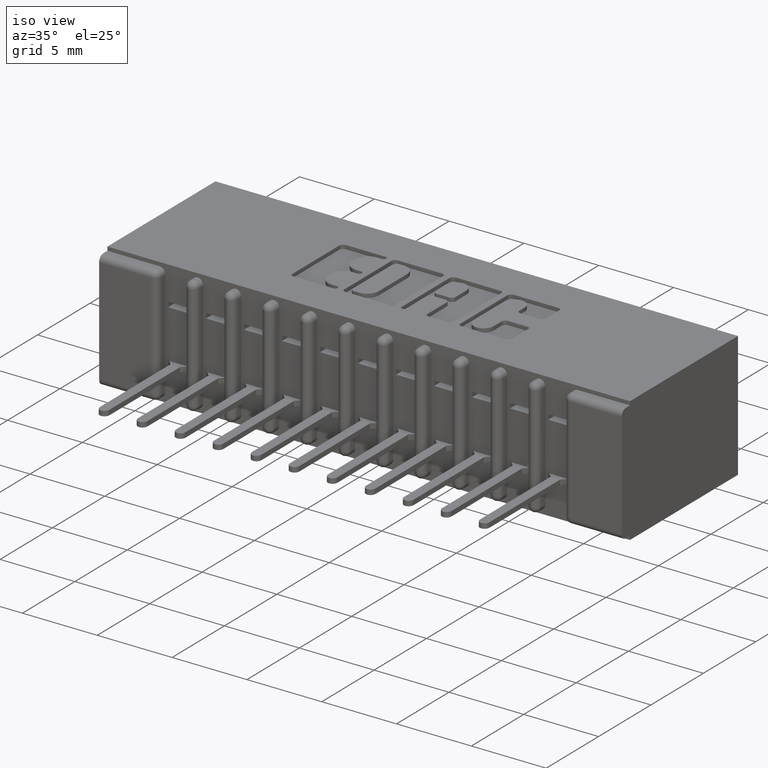
[diagram: clean part render]
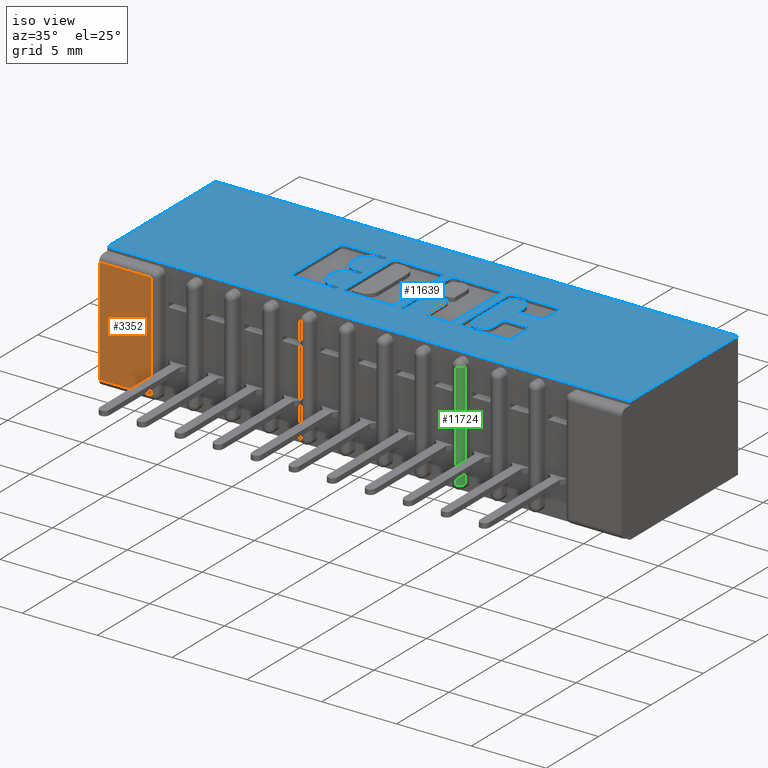
[diagram: same view with three faces highlighted in distinct colors, each labeled with its STEP entity id]
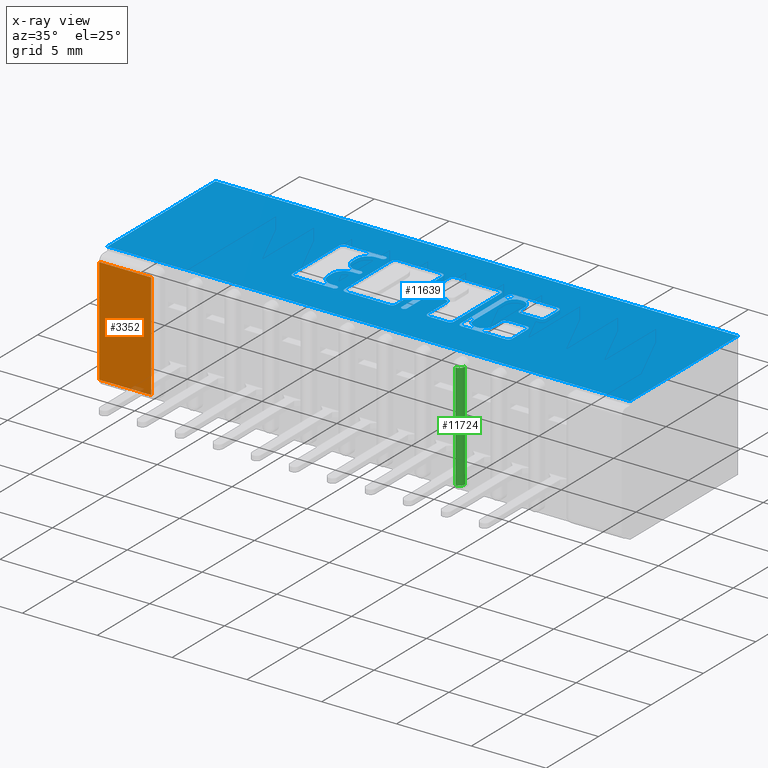
[diagram: x-ray of the same camera — body ghosted, the three highlighted faces saturated]
A machine part, iso view with three faces highlighted in distinct colors.
The next image is the same camera in x-ray (body ghosted, the three faces saturated) — at least one of them is partly hidden behind the body in this view.
Their STEP definitions:

[orange] entity #3352 — the highlighted planar face has unit normal (0, -1, 0).
#548 = VERTEX_POINT ( 'NONE', #10863 ) ;
#860 = AXIS2_PLACEMENT_3D ( 'NONE', #15962, #13674, #6529 ) ;
#1025 = CARTESIAN_POINT ( 'NONE',  ( 1.675000000000000000, 0.0000000000000000000, -0.3049999999999999400 ) ) ;
#1398 = DIRECTION ( 'NONE',  ( 1.000000000000000000, -0.0000000000000000000, -0.0000000000000000000 ) ) ;
#2974 = CARTESIAN_POINT ( 'NONE',  ( 0.2999999999999999300, 0.0000000000000000000, -0.02499999999999997400 ) ) ;
#2997 = DIRECTION ( 'NONE',  ( -1.000000000000000000, 0.0000000000000000000, 0.0000000000000000000 ) ) ;
#3125 = VECTOR ( 'NONE', #8893, 39.37007874015748100 ) ;
#3352 = ADVANCED_FACE ( 'NONE', ( #14489 ), #12763, .T. ) ;
#3420 = ORIENTED_EDGE ( 'NONE', *, *, #8736, .T. ) ;
#3652 = ORIENTED_EDGE ( 'NONE', *, *, #14419, .T. ) ;
#3676 = LINE ( 'NONE', #7537, #3125 ) ;
#4289 = ORIENTED_EDGE ( 'NONE', *, *, #15964, .T. ) ;
#6529 = DIRECTION ( 'NONE',  ( 0.0000000000000000000, -0.0000000000000000000, -1.000000000000000000 ) ) ;
#6645 = CARTESIAN_POINT ( 'NONE',  ( 0.4372500000000004200, 0.0000000000000000000, -0.02499999999999997400 ) ) ;
#7537 = CARTESIAN_POINT ( 'NONE',  ( 0.2999999999999999300, 0.0000000000000000000, -0.3300000000000000200 ) ) ;
#7811 = LINE ( 'NONE', #1025, #11732 ) ;
#8736 = EDGE_CURVE ( 'NONE', #16574, #548, #7811, .T. ) ;
#8893 = DIRECTION ( 'NONE',  ( -1.034790906691008700E-016, -0.0000000000000000000, -1.000000000000000000 ) ) ;
#10863 = CARTESIAN_POINT ( 'NONE',  ( 0.4372500000000003600, 0.0000000000000000000, -0.3049999999999999400 ) ) ;
#11632 = EDGE_CURVE ( 'NONE', #11743, #16574, #3676, .T. ) ;
#11732 = VECTOR ( 'NONE', #1398, 39.37007874015748100 ) ;
#11743 = VERTEX_POINT ( 'NONE', #12960 ) ;
#12096 = VECTOR ( 'NONE', #2997, 39.37007874015748100 ) ;
#12125 = LINE ( 'NONE', #2974, #12096 ) ;
#12763 = PLANE ( 'NONE',  #860 ) ;
#12954 = CARTESIAN_POINT ( 'NONE',  ( 0.4372500000000004200, 0.0000000000000000000, -0.02499999999999997400 ) ) ;
#12960 = CARTESIAN_POINT ( 'NONE',  ( 0.2999999999999999900, 0.0000000000000000000, -0.02499999999999997400 ) ) ;
#13002 = DIRECTION ( 'NONE',  ( -0.0000000000000000000, -0.0000000000000000000, 1.000000000000000000 ) ) ;
#13674 = DIRECTION ( 'NONE',  ( 0.0000000000000000000, -1.000000000000000000, 0.0000000000000000000 ) ) ;
#14307 = CARTESIAN_POINT ( 'NONE',  ( 0.2999999999999999300, 0.0000000000000000000, -0.3049999999999999400 ) ) ;
#14419 = EDGE_CURVE ( 'NONE', #548, #14650, #16037, .T. ) ;
#14489 = FACE_OUTER_BOUND ( 'NONE', #14953, .T. ) ;
#14650 = VERTEX_POINT ( 'NONE', #6645 ) ;
#14953 = EDGE_LOOP ( 'NONE', ( #3420, #3652, #4289, #16356 ) ) ;
#15949 = VECTOR ( 'NONE', #13002, 39.37007874015748100 ) ;
#15962 = CARTESIAN_POINT ( 'NONE',  ( 0.0000000000000000000, 0.0000000000000000000, -0.3300000000000000200 ) ) ;
#15964 = EDGE_CURVE ( 'NONE', #14650, #11743, #12125, .T. ) ;
#16037 = LINE ( 'NONE', #12954, #15949 ) ;
#16356 = ORIENTED_EDGE ( 'NONE', *, *, #11632, .T. ) ;
#16574 = VERTEX_POINT ( 'NONE', #14307 ) ;

[blue] entity #11639 — the highlighted planar face has unit normal (0, 0, -1).
#33 = VERTEX_POINT ( 'NONE', #9112 ) ;
#52 = VECTOR ( 'NONE', #6929, 39.37007874015748100 ) ;
#69 = LINE ( 'NONE', #7767, #52 ) ;
#129 = VERTEX_POINT ( 'NONE', #3287 ) ;
#164 = VERTEX_POINT ( 'NONE', #11325 ) ;
#171 = CIRCLE ( 'NONE', #16795, 0.009815670203803203800 ) ;
#197 = VERTEX_POINT ( 'NONE', #16006 ) ;
#257 = DIRECTION ( 'NONE',  ( 0.0000000000000000000, -1.000000000000000000, 0.0000000000000000000 ) ) ;
#361 = VERTEX_POINT ( 'NONE', #12110 ) ;
#419 = VERTEX_POINT ( 'NONE', #6026 ) ;
#420 = AXIS2_PLACEMENT_3D ( 'NONE', #14216, #14118, #14036 ) ;
#447 = DIRECTION ( 'NONE',  ( 1.000000000000000000, 0.0000000000000000000, 0.0000000000000000000 ) ) ;
#492 = AXIS2_PLACEMENT_3D ( 'NONE', #15290, #15247, #15172 ) ;
#568 = VERTEX_POINT ( 'NONE', #15011 ) ;
#589 = VERTEX_POINT ( 'NONE', #8353 ) ;
#629 = DIRECTION ( 'NONE',  ( 1.000000000000000000, 0.0000000000000000000, 0.0000000000000000000 ) ) ;
#695 = DIRECTION ( 'NONE',  ( -0.0000000000000000000, 0.0000000000000000000, 1.000000000000000000 ) ) ;
#737 = AXIS2_PLACEMENT_3D ( 'NONE', #4883, #4804, #4744 ) ;
#759 = DIRECTION ( 'NONE',  ( 1.000000000000000000, 0.0000000000000000000, 0.0000000000000000000 ) ) ;
#847 = CARTESIAN_POINT ( 'NONE',  ( 0.8206336065353099200, 0.2340000000000221900, 0.0000000000000000000 ) ) ;
#873 = DIRECTION ( 'NONE',  ( -0.0000000000000000000, 0.0000000000000000000, 1.000000000000000000 ) ) ;
#924 = CARTESIAN_POINT ( 'NONE',  ( 0.8532707099630101300, 0.3223410318342119200, 0.0000000000000000000 ) ) ;
#963 = AXIS2_PLACEMENT_3D ( 'NONE', #12046, #12026, #11994 ) ;
#966 = DIRECTION ( 'NONE',  ( 0.0000000000000000000, -1.000000000000000000, 0.0000000000000000000 ) ) ;
#1053 = AXIS2_PLACEMENT_3D ( 'NONE', #11982, #11912, #11711 ) ;
#1080 = VERTEX_POINT ( 'NONE', #4942 ) ;
#1248 = CIRCLE ( 'NONE', #2994, 0.009815670203805798900 ) ;
#1259 = VECTOR ( 'NONE', #15775, 39.37007874015748100 ) ;
#1270 = VERTEX_POINT ( 'NONE', #8287 ) ;
#1282 = CARTESIAN_POINT ( 'NONE',  ( 1.284178631909940200, 0.1456589681657848000, 0.0000000000000000000 ) ) ;
#1296 = VECTOR ( 'NONE', #12315, 39.37007874015748100 ) ;
#1313 = EDGE_CURVE ( 'NONE', #9657, #1270, #2207, .T. ) ;
#1321 = LINE ( 'NONE', #15855, #1259 ) ;
#1330 = LINE ( 'NONE', #12581, #1296 ) ;
#1337 = DIRECTION ( 'NONE',  ( -0.0000000000000000000, 1.000000000000000000, -0.0000000000000000000 ) ) ;
#1457 = CARTESIAN_POINT ( 'NONE',  ( 1.214978156973179000, 0.0000000000000000000, 0.0000000000000000000 ) ) ;
#1481 = LINE ( 'NONE', #12280, #1548 ) ;
#1491 = DIRECTION ( 'NONE',  ( 0.0000000000000000000, 1.000000000000000000, -0.0000000000000000000 ) ) ;
#1526 = VECTOR ( 'NONE', #13214, 39.37007874015748100 ) ;
#1548 = VECTOR ( 'NONE', #12224, 39.37007874015748100 ) ;
#1550 = VERTEX_POINT ( 'NONE', #2107 ) ;
#1574 = CARTESIAN_POINT ( 'NONE',  ( 0.7065264404161153400, 0.0000000000000000000, 0.0000000000000000000 ) ) ;
#1580 = LINE ( 'NONE', #13330, #1526 ) ;
#1590 = VERTEX_POINT ( 'NONE', #7081 ) ;
#1646 = DIRECTION ( 'NONE',  ( 0.0000000000000000000, -1.000000000000000000, 0.0000000000000000000 ) ) ;
#1666 = CARTESIAN_POINT ( 'NONE',  ( 0.2999999999999999900, 0.0000000000000000000, 0.0000000000000000000 ) ) ;
#1845 = CARTESIAN_POINT ( 'NONE',  ( 0.7757269153529277000, 0.0000000000000000000, 0.0000000000000000000 ) ) ;
#1935 = DIRECTION ( 'NONE',  ( -1.000000000000000000, -3.427012734660361200E-014, 0.0000000000000000000 ) ) ;
#1987 = AXIS2_PLACEMENT_3D ( 'NONE', #6434, #6430, #6315 ) ;
#2037 = CARTESIAN_POINT ( 'NONE',  ( 1.131544960240806800, 0.0000000000000000000, 0.0000000000000000000 ) ) ;
#2107 = CARTESIAN_POINT ( 'NONE',  ( 1.148722383097458400, 0.1456589681657918000, 0.0000000000000000000 ) ) ;
#2191 = CIRCLE ( 'NONE', #7323, 0.03141014465221592800 ) ;
#2207 = LINE ( 'NONE', #4587, #2415 ) ;
#2215 = VECTOR ( 'NONE', #257, 39.37007874015748100 ) ;
#2277 = LINE ( 'NONE', #1666, #2449 ) ;
#2334 = LINE ( 'NONE', #2037, #2215 ) ;
#2381 = VERTEX_POINT ( 'NONE', #4732 ) ;
#2415 = VECTOR ( 'NONE', #12526, 39.37007874015748100 ) ;
#2449 = VECTOR ( 'NONE', #1337, 39.37007874015748100 ) ;
#2485 = AXIS2_PLACEMENT_3D ( 'NONE', #13261, #5724, #447 ) ;
#2537 = AXIS2_PLACEMENT_3D ( 'NONE', #3321, #3267, #3258 ) ;
#2717 = LINE ( 'NONE', #6586, #2732 ) ;
#2732 = VECTOR ( 'NONE', #3557, 39.37007874015748100 ) ;
#2737 = FACE_BOUND ( 'NONE', #3922, .T. ) ;
#2747 = FACE_BOUND ( 'NONE', #13050, .T. ) ;
#2869 = FACE_OUTER_BOUND ( 'NONE', #3829, .T. ) ;
#2946 = CARTESIAN_POINT ( 'NONE',  ( -7.783740811590865400E-015, 0.2271290308573155600, 0.0000000000000000000 ) ) ;
#2994 = AXIS2_PLACEMENT_3D ( 'NONE', #13861, #13823, #13806 ) ;
#3107 = DIRECTION ( 'NONE',  ( 0.0000000000000000000, -1.000000000000000000, 0.0000000000000000000 ) ) ;
#3160 = CIRCLE ( 'NONE', #3538, 0.009815670203803340800 ) ;
#3169 = AXIS2_PLACEMENT_3D ( 'NONE', #10356, #10328, #10307 ) ;
#3177 = VERTEX_POINT ( 'NONE', #11646 ) ;
#3231 = CARTESIAN_POINT ( 'NONE',  ( 0.8434550397591692400, 0.0000000000000000000, 0.0000000000000000000 ) ) ;
#3258 = DIRECTION ( 'NONE',  ( 1.000000000000000000, 0.0000000000000000000, 0.0000000000000000000 ) ) ;
#3267 = DIRECTION ( 'NONE',  ( -0.0000000000000000000, 0.0000000000000000000, 1.000000000000000000 ) ) ;
#3287 = CARTESIAN_POINT ( 'NONE',  ( 0.8275045756779996200, 0.3252857328953880400, 0.0000000000000000000 ) ) ;
#3292 = VERTEX_POINT ( 'NONE', #9887 ) ;
#3304 = ORIENTED_EDGE ( 'NONE', *, *, #4388, .F. ) ;
#3321 = CARTESIAN_POINT ( 'NONE',  ( 0.8532707099629759400, 0.1456589681657918000, 0.0000000000000000000 ) ) ;
#3331 = FACE_BOUND ( 'NONE', #8172, .T. ) ;
#3345 = DIRECTION ( 'NONE',  ( 0.0000000000000000000, -1.000000000000000000, 0.0000000000000000000 ) ) ;
#3388 = LINE ( 'NONE', #9000, #16667 ) ;
#3431 = CARTESIAN_POINT ( 'NONE',  ( 0.9789112885716689800, 0.3223410318342119200, 0.0000000000000000000 ) ) ;
#3432 = CARTESIAN_POINT ( 'NONE',  ( 1.284178631909940200, 0.0000000000000000000, 0.0000000000000000000 ) ) ;
#3490 = ORIENTED_EDGE ( 'NONE', *, *, #14166, .F. ) ;
#3504 = VERTEX_POINT ( 'NONE', #9738 ) ;
#3538 = AXIS2_PLACEMENT_3D ( 'NONE', #9822, #7493, #3666 ) ;
#3543 = ORIENTED_EDGE ( 'NONE', *, *, #16362, .F. ) ;
#3557 = DIRECTION ( 'NONE',  ( 0.0000000000000000000, 1.000000000000000000, -0.0000000000000000000 ) ) ;
#3586 = EDGE_CURVE ( 'NONE', #15696, #1270, #14097, .T. ) ;
#3589 = ORIENTED_EDGE ( 'NONE', *, *, #16700, .F. ) ;
#3622 = AXIS2_PLACEMENT_3D ( 'NONE', #924, #873, #759 ) ;
#3623 = FACE_BOUND ( 'NONE', #13543, .T. ) ;
#3631 = CARTESIAN_POINT ( 'NONE',  ( 1.148722383097458400, 0.0000000000000000000, 0.0000000000000000000 ) ) ;
#3634 = VERTEX_POINT ( 'NONE', #6876 ) ;
#3666 = DIRECTION ( 'NONE',  ( 1.000000000000000000, 0.0000000000000000000, 0.0000000000000000000 ) ) ;
#3753 = ORIENTED_EDGE ( 'NONE', *, *, #16451, .T. ) ;
#3782 = ORIENTED_EDGE ( 'NONE', *, *, #13744, .F. ) ;
#3788 = DIRECTION ( 'NONE',  ( -1.000000000000000000, 0.0000000000000000000, 0.0000000000000000000 ) ) ;
#3789 = DIRECTION ( 'NONE',  ( 0.0000000000000000000, 1.000000000000000000, -0.0000000000000000000 ) ) ;
#3799 = LINE ( 'NONE', #11984, #3887 ) ;
#3829 = EDGE_LOOP ( 'NONE', ( #7701, #7753, #7885, #7986 ) ) ;
#3838 = ORIENTED_EDGE ( 'NONE', *, *, #12237, .T. ) ;
#3870 = ORIENTED_EDGE ( 'NONE', *, *, #16021, .F. ) ;
#3887 = VECTOR ( 'NONE', #3788, 39.37007874015748100 ) ;
#3914 = DIRECTION ( 'NONE',  ( 1.000000000000000000, 0.0000000000000000000, 0.0000000000000000000 ) ) ;
#3922 = EDGE_LOOP ( 'NONE', ( #8886, #9184, #9261, #9345, #9449, #9615, #9631, #9733, #9813, #10003, #10022, #10061, #10110, #10140 ) ) ;
#3977 = CARTESIAN_POINT ( 'NONE',  ( 0.2999999999999999900, 0.4370000000000000000, 0.0000000000000000000 ) ) ;
#3996 = ORIENTED_EDGE ( 'NONE', *, *, #15755, .F. ) ;
#4051 = CARTESIAN_POINT ( 'NONE',  ( -0.0000000000000000000, 0.2629562271012354500, 0.0000000000000000000 ) ) ;
#4085 = VERTEX_POINT ( 'NONE', #6133 ) ;
#4117 = EDGE_CURVE ( 'NONE', #15696, #3634, #12602, .T. ) ;
#4123 = VERTEX_POINT ( 'NONE', #14775 ) ;
#4201 = ORIENTED_EDGE ( 'NONE', *, *, #14585, .F. ) ;
#4244 = ORIENTED_EDGE ( 'NONE', *, *, #14565, .F. ) ;
#4302 = DIRECTION ( 'NONE',  ( -1.000000000000000000, 0.0000000000000000000, -0.0000000000000000000 ) ) ;
#4313 = ORIENTED_EDGE ( 'NONE', *, *, #14182, .F. ) ;
#4338 = ORIENTED_EDGE ( 'NONE', *, *, #13547, .F. ) ;
#4388 = EDGE_CURVE ( 'NONE', #33, #13368, #11922, .T. ) ;
#4507 = ORIENTED_EDGE ( 'NONE', *, *, #13461, .F. ) ;
#4512 = CARTESIAN_POINT ( 'NONE',  ( 0.7757269153529277000, 0.1809953808994922100, 0.0000000000000000000 ) ) ;
#4520 = DIRECTION ( 'NONE',  ( 0.0000000000000000000, 1.000000000000000000, -0.0000000000000000000 ) ) ;
#4531 = CIRCLE ( 'NONE', #11477, 0.009815670203796920600 ) ;
#4570 = LINE ( 'NONE', #16313, #4614 ) ;
#4587 = CARTESIAN_POINT ( 'NONE',  ( 1.009830649713646900, 0.0000000000000000000, 0.0000000000000000000 ) ) ;
#4602 = EDGE_CURVE ( 'NONE', #7779, #3634, #11311, .T. ) ;
#4614 = VECTOR ( 'NONE', #13181, 39.37007874015748100 ) ;
#4615 = DIRECTION ( 'NONE',  ( 0.0000000000000000000, 0.0000000000000000000, -1.000000000000000000 ) ) ;
#4619 = CARTESIAN_POINT ( 'NONE',  ( 0.0000000000000000000, 0.4370000000000000000, 0.0000000000000000000 ) ) ;
#4634 = VECTOR ( 'NONE', #9465, 39.37007874015748100 ) ;
#4717 = ORIENTED_EDGE ( 'NONE', *, *, #13260, .F. ) ;
#4732 = CARTESIAN_POINT ( 'NONE',  ( 0.7163421106199185900, 0.1358432979619868000, 0.0000000000000000000 ) ) ;
#4744 = DIRECTION ( 'NONE',  ( 1.000000000000000000, 0.0000000000000000000, 0.0000000000000000000 ) ) ;
#4747 = LINE ( 'NONE', #9573, #4634 ) ;
#4774 = CARTESIAN_POINT ( 'NONE',  ( 1.162464321382818300, 0.0000000000000000000, 0.0000000000000000000 ) ) ;
#4797 = ORIENTED_EDGE ( 'NONE', *, *, #14768, .F. ) ;
#4804 = DIRECTION ( 'NONE',  ( -0.0000000000000000000, 0.0000000000000000000, 1.000000000000000000 ) ) ;
#4883 = CARTESIAN_POINT ( 'NONE',  ( 0.8206336065353099200, 0.2340000000000221900, 0.0000000000000000000 ) ) ;
#4906 = ORIENTED_EDGE ( 'NONE', *, *, #9067, .F. ) ;
#4942 = CARTESIAN_POINT ( 'NONE',  ( 1.121729290037010400, 0.1358432979619864400, 0.0000000000000000000 ) ) ;
#4992 = ORIENTED_EDGE ( 'NONE', *, *, #12962, .F. ) ;
#5111 = CIRCLE ( 'NONE', #9857, 0.009815670203822599700 ) ;
#5120 = PLANE ( 'NONE',  #15873 ) ;
#5167 = ORIENTED_EDGE ( 'NONE', *, *, #11558, .F. ) ;
#5210 = VERTEX_POINT ( 'NONE', #11851 ) ;
#5255 = VERTEX_POINT ( 'NONE', #7739 ) ;
#5361 = ORIENTED_EDGE ( 'NONE', *, *, #11647, .F. ) ;
#5379 = ORIENTED_EDGE ( 'NONE', *, *, #10769, .T. ) ;
#5392 = VERTEX_POINT ( 'NONE', #14738 ) ;
#5401 = CARTESIAN_POINT ( 'NONE',  ( 0.8206336065353354600, 0.1427142671046497900, 0.0000000000000000000 ) ) ;
#5462 = ORIENTED_EDGE ( 'NONE', *, *, #9914, .F. ) ;
#5500 = CIRCLE ( 'NONE', #3169, 0.03141014465218178200 ) ;
#5581 = AXIS2_PLACEMENT_3D ( 'NONE', #847, #695, #629 ) ;
#5613 = DIRECTION ( 'NONE',  ( 1.000000000000000000, 0.0000000000000000000, 0.0000000000000000000 ) ) ;
#5618 = VERTEX_POINT ( 'NONE', #11574 ) ;
#5622 = VECTOR ( 'NONE', #15927, 39.37007874015748100 ) ;
#5650 = CARTESIAN_POINT ( 'NONE',  ( 0.9960887114283308900, 0.0000000000000000000, 0.0000000000000000000 ) ) ;
#5705 = CIRCLE ( 'NONE', #8952, 0.009815670203796237100 ) ;
#5724 = DIRECTION ( 'NONE',  ( -0.0000000000000000000, 0.0000000000000000000, 1.000000000000000000 ) ) ;
#5759 = ORIENTED_EDGE ( 'NONE', *, *, #12656, .T. ) ;
#5765 = DIRECTION ( 'NONE',  ( -0.0000000000000000000, 0.0000000000000000000, 1.000000000000000000 ) ) ;
#5768 = EDGE_CURVE ( 'NONE', #7610, #7919, #7249, .T. ) ;
#5777 = VERTEX_POINT ( 'NONE', #1282 ) ;
#5794 = ORIENTED_EDGE ( 'NONE', *, *, #12569, .F. ) ;
#5803 = CARTESIAN_POINT ( 'NONE',  ( 0.9690956183678278700, 0.3223410318342117600, 0.0000000000000000000 ) ) ;
#5815 = DIRECTION ( 'NONE',  ( -0.0000000000000000000, 0.0000000000000000000, 1.000000000000000000 ) ) ;
#5875 = CIRCLE ( 'NONE', #7581, 0.009815670203839947000 ) ;
#6026 = CARTESIAN_POINT ( 'NONE',  ( 0.8275045756779977300, 0.1427142671046497900, 0.0000000000000000000 ) ) ;
#6090 = CARTESIAN_POINT ( 'NONE',  ( 1.675000000000000000, 0.4370000000000000000, -1.836970198721029400E-017 ) ) ;
#6133 = CARTESIAN_POINT ( 'NONE',  ( 0.8206336065353513300, 0.3184147637527375300, 0.0000000000000000000 ) ) ;
#6186 = ORIENTED_EDGE ( 'NONE', *, *, #12347, .F. ) ;
#6191 = ORIENTED_EDGE ( 'NONE', *, *, #11470, .F. ) ;
#6199 = VECTOR ( 'NONE', #4520, 39.37007874015748100 ) ;
#6224 = LINE ( 'NONE', #16429, #5622 ) ;
#6261 = CARTESIAN_POINT ( 'NONE',  ( 0.8071370600050840100, 0.2408709691426856600, 0.0000000000000000000 ) ) ;
#6267 = ORIENTED_EDGE ( 'NONE', *, *, #11773, .F. ) ;
#6295 = VECTOR ( 'NONE', #1646, 39.37007874015748100 ) ;
#6315 = DIRECTION ( 'NONE',  ( 1.000000000000000000, 0.0000000000000000000, 0.0000000000000000000 ) ) ;
#6319 = ORIENTED_EDGE ( 'NONE', *, *, #8785, .T. ) ;
#6390 = EDGE_CURVE ( 'NONE', #7779, #12245, #4570, .T. ) ;
#6397 = CIRCLE ( 'NONE', #5581, 0.006870969142663458500 ) ;
#6414 = ORIENTED_EDGE ( 'NONE', *, *, #8705, .F. ) ;
#6430 = DIRECTION ( 'NONE',  ( -0.0000000000000000000, 0.0000000000000000000, 1.000000000000000000 ) ) ;
#6434 = CARTESIAN_POINT ( 'NONE',  ( 1.224793827176966900, 0.2055345564089713600, 0.0000000000000000000 ) ) ;
#6469 = CARTESIAN_POINT ( 'NONE',  ( 0.7757269153529277000, 0.1957188862052023900, 0.0000000000000000000 ) ) ;
#6485 = AXIS2_PLACEMENT_3D ( 'NONE', #16550, #16548, #16527 ) ;
#6510 = ORIENTED_EDGE ( 'NONE', *, *, #8226, .T. ) ;
#6531 = VERTEX_POINT ( 'NONE', #9494 ) ;
#6560 = DIRECTION ( 'NONE',  ( -0.0000000000000000000, 0.0000000000000000000, 1.000000000000000000 ) ) ;
#6566 = VERTEX_POINT ( 'NONE', #12278 ) ;
#6571 = DIRECTION ( 'NONE',  ( 1.000000000000000000, 0.0000000000000000000, 0.0000000000000000000 ) ) ;
#6576 = CARTESIAN_POINT ( 'NONE',  ( 1.274362961706167100, 0.2727718973050404800, 0.0000000000000000000 ) ) ;
#6586 = CARTESIAN_POINT ( 'NONE',  ( 1.284178631909971900, 0.0000000000000000000, 0.0000000000000000000 ) ) ;
#6600 = EDGE_CURVE ( 'NONE', #1080, #15542, #3799, .T. ) ;
#6640 = CARTESIAN_POINT ( 'NONE',  ( 1.274362961706134300, 0.1358432979619850200, 0.0000000000000000000 ) ) ;
#6648 = VERTEX_POINT ( 'NONE', #10144 ) ;
#6693 = VECTOR ( 'NONE', #1935, 39.37007874015748100 ) ;
#6700 = ORIENTED_EDGE ( 'NONE', *, *, #11752, .F. ) ;
#6753 = ORIENTED_EDGE ( 'NONE', *, *, #16273, .F. ) ;
#6831 = ORIENTED_EDGE ( 'NONE', *, *, #9169, .F. ) ;
#6839 = EDGE_CURVE ( 'NONE', #11916, #15542, #3160, .T. ) ;
#6853 = DIRECTION ( 'NONE',  ( 1.000000000000000000, 0.0000000000000000000, 0.0000000000000000000 ) ) ;
#6876 = CARTESIAN_POINT ( 'NONE',  ( 0.9960887114283308900, 0.3223410318342119200, 0.0000000000000000000 ) ) ;
#6883 = DIRECTION ( 'NONE',  ( 1.000000000000000000, 0.0000000000000000000, 0.0000000000000000000 ) ) ;
#6922 = LINE ( 'NONE', #1574, #6295 ) ;
#6929 = DIRECTION ( 'NONE',  ( -1.000000000000000000, 0.0000000000000000000, 0.0000000000000000000 ) ) ;
#6945 = DIRECTION ( 'NONE',  ( -0.0000000000000000000, 1.000000000000000000, -0.0000000000000000000 ) ) ;
#7006 = CARTESIAN_POINT ( 'NONE',  ( 1.162464321382818300, 0.1758421540424548500, 0.0000000000000000000 ) ) ;
#7037 = ORIENTED_EDGE ( 'NONE', *, *, #11740, .F. ) ;
#7053 = LINE ( 'NONE', #11145, #7286 ) ;
#7081 = CARTESIAN_POINT ( 'NONE',  ( 1.274362961706156700, 0.2153502266127593800, 0.0000000000000000000 ) ) ;
#7118 = DIRECTION ( 'NONE',  ( -0.0000000000000000000, 0.0000000000000000000, 1.000000000000000000 ) ) ;
#7138 = CARTESIAN_POINT ( 'NONE',  ( 0.8206336065353512200, 0.3252857328953880400, 0.0000000000000000000 ) ) ;
#7156 = DIRECTION ( 'NONE',  ( 1.000000000000000000, 0.0000000000000000000, 0.0000000000000000000 ) ) ;
#7172 = DIRECTION ( 'NONE',  ( -0.0000000000000000000, 0.0000000000000000000, 1.000000000000000000 ) ) ;
#7191 = CARTESIAN_POINT ( 'NONE',  ( 1.274362961706134300, 0.1456589681657918000, 0.0000000000000000000 ) ) ;
#7196 = ORIENTED_EDGE ( 'NONE', *, *, #11048, .F. ) ;
#7233 = ORIENTED_EDGE ( 'NONE', *, *, #11449, .F. ) ;
#7249 = LINE ( 'NONE', #14009, #7287 ) ;
#7253 = VECTOR ( 'NONE', #15833, 39.37007874015748100 ) ;
#7258 = CARTESIAN_POINT ( 'NONE',  ( 0.9690956183678620700, 0.1358432979619850200, 0.0000000000000000000 ) ) ;
#7262 = ORIENTED_EDGE ( 'NONE', *, *, #10142, .F. ) ;
#7270 = LINE ( 'NONE', #16003, #7253 ) ;
#7286 = VECTOR ( 'NONE', #11335, 39.37007874015748100 ) ;
#7287 = VECTOR ( 'NONE', #11034, 39.37007874015748100 ) ;
#7288 = DIRECTION ( 'NONE',  ( 1.000000000000000000, 0.0000000000000000000, 0.0000000000000000000 ) ) ;
#7323 = AXIS2_PLACEMENT_3D ( 'NONE', #14412, #14396, #14185 ) ;
#7329 = CARTESIAN_POINT ( 'NONE',  ( 0.8434550397591692400, 0.1456589681657918000, 0.0000000000000000000 ) ) ;
#7355 = CARTESIAN_POINT ( 'NONE',  ( 1.158538053301265200, 0.1358432979619850200, 0.0000000000000000000 ) ) ;
#7359 = ORIENTED_EDGE ( 'NONE', *, *, #11258, .F. ) ;
#7386 = CIRCLE ( 'NONE', #492, 0.03141014465215624000 ) ;
#7401 = CARTESIAN_POINT ( 'NONE',  ( 1.214978156973179000, 0.2055345564089705000, 0.0000000000000000000 ) ) ;
#7404 = DIRECTION ( 'NONE',  ( -0.0000000000000000000, 0.0000000000000000000, 1.000000000000000000 ) ) ;
#7476 = ORIENTED_EDGE ( 'NONE', *, *, #9232, .F. ) ;
#7482 = DIRECTION ( 'NONE',  ( 1.000000000000000000, 0.0000000000000000000, 0.0000000000000000000 ) ) ;
#7486 = DIRECTION ( 'NONE',  ( -0.0000000000000000000, 0.0000000000000000000, 1.000000000000000000 ) ) ;
#7493 = DIRECTION ( 'NONE',  ( -0.0000000000000000000, 0.0000000000000000000, 1.000000000000000000 ) ) ;
#7526 = CARTESIAN_POINT ( 'NONE',  ( 1.274362961706153200, 0.2055345564089722500, 0.0000000000000000000 ) ) ;
#7549 = CARTESIAN_POINT ( 'NONE',  ( 1.019646319917450100, 0.2173133606535474200, 0.0000000000000000000 ) ) ;
#7563 = DIRECTION ( 'NONE',  ( -1.000000000000000000, 0.0000000000000000000, 0.0000000000000000000 ) ) ;
#7581 = AXIS2_PLACEMENT_3D ( 'NONE', #13958, #13972, #13919 ) ;
#7610 = VERTEX_POINT ( 'NONE', #3977 ) ;
#7621 = ORIENTED_EDGE ( 'NONE', *, *, #9305, .F. ) ;
#7630 = CARTESIAN_POINT ( 'NONE',  ( 0.9960887114283308900, 0.1427142671046497900, 0.0000000000000000000 ) ) ;
#7662 = CARTESIAN_POINT ( 'NONE',  ( 1.062344485303984700, 0.1456589681657896600, 0.0000000000000000000 ) ) ;
#7665 = CIRCLE ( 'NONE', #14800, 0.009815670203840767500 ) ;
#7681 = ORIENTED_EDGE ( 'NONE', *, *, #12642, .F. ) ;
#7701 = ORIENTED_EDGE ( 'NONE', *, *, #10737, .F. ) ;
#7739 = CARTESIAN_POINT ( 'NONE',  ( 1.284178631909940200, 0.2055345564089722500, 0.0000000000000000000 ) ) ;
#7746 = CIRCLE ( 'NONE', #1053, 0.006870969142662229500 ) ;
#7753 = ORIENTED_EDGE ( 'NONE', *, *, #11025, .F. ) ;
#7767 = CARTESIAN_POINT ( 'NONE',  ( 0.0000000000000000000, 0.3321567020380344900, 0.0000000000000000000 ) ) ;
#7779 = VERTEX_POINT ( 'NONE', #10212 ) ;
#7808 = AXIS2_PLACEMENT_3D ( 'NONE', #10276, #10072, #9895 ) ;
#7825 = CARTESIAN_POINT ( 'NONE',  ( 1.675000000000000000, 0.0000000000000000000, -1.836970198721029400E-017 ) ) ;
#7834 = LINE ( 'NONE', #2946, #6693 ) ;
#7841 = CARTESIAN_POINT ( 'NONE',  ( 1.224793827176977400, 0.2629562271012354500, 0.0000000000000000000 ) ) ;
#7885 = ORIENTED_EDGE ( 'NONE', *, *, #9700, .T. ) ;
#7919 = VERTEX_POINT ( 'NONE', #6090 ) ;
#7986 = ORIENTED_EDGE ( 'NONE', *, *, #5768, .F. ) ;
#8038 = ORIENTED_EDGE ( 'NONE', *, *, #9720, .F. ) ;
#8078 = ORIENTED_EDGE ( 'NONE', *, *, #9037, .F. ) ;
#8094 = VERTEX_POINT ( 'NONE', #13275 ) ;
#8172 = EDGE_LOOP ( 'NONE', ( #3304, #3490, #3543, #3589, #3753, #3782, #3838, #3870, #3996, #4201, #4244, #4313, #4338, #4507, #4717, #4797, #4906, #4992, #5167, #5361 ) ) ;
#8184 = CARTESIAN_POINT ( 'NONE',  ( 0.0000000000000000000, 0.2153502266127593800, 0.0000000000000000000 ) ) ;
#8192 = ORIENTED_EDGE ( 'NONE', *, *, #16558, .F. ) ;
#8208 = ORIENTED_EDGE ( 'NONE', *, *, #14414, .F. ) ;
#8226 = EDGE_CURVE ( 'NONE', #9376, #10591, #5500, .T. ) ;
#8287 = CARTESIAN_POINT ( 'NONE',  ( 1.009830649713646900, 0.1427142671046497900, 0.0000000000000000000 ) ) ;
#8339 = VECTOR ( 'NONE', #1491, 39.37007874015748100 ) ;
#8353 = CARTESIAN_POINT ( 'NONE',  ( 1.214978156973165900, 0.2921578454992617100, 0.0000000000000000000 ) ) ;
#8365 = VECTOR ( 'NONE', #12480, 39.37007874015748100 ) ;
#8385 = CIRCLE ( 'NONE', #11800, 0.03141014465217454400 ) ;
#8443 = VERTEX_POINT ( 'NONE', #7258 ) ;
#8474 = VERTEX_POINT ( 'NONE', #6640 ) ;
#8496 = ORIENTED_EDGE ( 'NONE', *, *, #12360, .F. ) ;
#8535 = ORIENTED_EDGE ( 'NONE', *, *, #15944, .F. ) ;
#8542 = LINE ( 'NONE', #1845, #8339 ) ;
#8569 = ORIENTED_EDGE ( 'NONE', *, *, #14899, .F. ) ;
#8684 = ORIENTED_EDGE ( 'NONE', *, *, #15278, .F. ) ;
#8705 = EDGE_CURVE ( 'NONE', #9376, #11943, #8542, .T. ) ;
#8716 = DIRECTION ( 'NONE',  ( 1.000000000000000000, 0.0000000000000000000, 0.0000000000000000000 ) ) ;
#8741 = DIRECTION ( 'NONE',  ( 1.000000000000000000, 0.0000000000000000000, 0.0000000000000000000 ) ) ;
#8779 = VERTEX_POINT ( 'NONE', #16220 ) ;
#8785 = EDGE_CURVE ( 'NONE', #15355, #11943, #7386, .T. ) ;
#8798 = DIRECTION ( 'NONE',  ( -0.0000000000000000000, 0.0000000000000000000, 1.000000000000000000 ) ) ;
#8826 = LINE ( 'NONE', #13404, #8365 ) ;
#8886 = ORIENTED_EDGE ( 'NONE', *, *, #6390, .T. ) ;
#8897 = CARTESIAN_POINT ( 'NONE',  ( 1.052528815100187700, 0.2173133606535546400, 0.0000000000000000000 ) ) ;
#8952 = AXIS2_PLACEMENT_3D ( 'NONE', #11255, #11234, #11043 ) ;
#9000 = CARTESIAN_POINT ( 'NONE',  ( -0.0000000000000000000, 0.1358432979619850200, 0.0000000000000000000 ) ) ;
#9037 = EDGE_CURVE ( 'NONE', #3504, #15913, #7270, .T. ) ;
#9067 = EDGE_CURVE ( 'NONE', #10132, #6648, #7665, .T. ) ;
#9076 = VERTEX_POINT ( 'NONE', #15302 ) ;
#9112 = CARTESIAN_POINT ( 'NONE',  ( 1.274362961706167100, 0.2629562271012354500, 0.0000000000000000000 ) ) ;
#9142 = LINE ( 'NONE', #4774, #6199 ) ;
#9169 = EDGE_CURVE ( 'NONE', #13350, #419, #7746, .T. ) ;
#9184 = ORIENTED_EDGE ( 'NONE', *, *, #16827, .F. ) ;
#9232 = EDGE_CURVE ( 'NONE', #129, #5618, #9896, .T. ) ;
#9249 = CARTESIAN_POINT ( 'NONE',  ( 1.284178631909971900, 0.3223410318341966000, 0.0000000000000000000 ) ) ;
#9261 = ORIENTED_EDGE ( 'NONE', *, *, #10743, .T. ) ;
#9305 = EDGE_CURVE ( 'NONE', #4085, #129, #9780, .T. ) ;
#9315 = AXIS2_PLACEMENT_3D ( 'NONE', #5803, #5765, #6571 ) ;
#9335 = VECTOR ( 'NONE', #16259, 39.37007874015748100 ) ;
#9345 = ORIENTED_EDGE ( 'NONE', *, *, #10130, .F. ) ;
#9376 = VERTEX_POINT ( 'NONE', #4512 ) ;
#9449 = ORIENTED_EDGE ( 'NONE', *, *, #6600, .T. ) ;
#9454 = LINE ( 'NONE', #15818, #9335 ) ;
#9465 = DIRECTION ( 'NONE',  ( 0.0000000000000000000, 1.000000000000000000, -0.0000000000000000000 ) ) ;
#9494 = CARTESIAN_POINT ( 'NONE',  ( 0.8206336064154142700, 0.1495852362473120400, 0.0000000000000000000 ) ) ;
#9573 = CARTESIAN_POINT ( 'NONE',  ( 1.062344485303984700, 0.0000000000000000000, 0.0000000000000000000 ) ) ;
#9580 = VERTEX_POINT ( 'NONE', #12239 ) ;
#9615 = ORIENTED_EDGE ( 'NONE', *, *, #6839, .F. ) ;
#9631 = ORIENTED_EDGE ( 'NONE', *, *, #10216, .T. ) ;
#9632 = AXIS2_PLACEMENT_3D ( 'NONE', #7138, #7118, #6853 ) ;
#9657 = VERTEX_POINT ( 'NONE', #10000 ) ;
#9700 = EDGE_CURVE ( 'NONE', #15365, #7919, #10323, .T. ) ;
#9702 = VERTEX_POINT ( 'NONE', #7006 ) ;
#9720 = EDGE_CURVE ( 'NONE', #15913, #10679, #10259, .T. ) ;
#9733 = ORIENTED_EDGE ( 'NONE', *, *, #10238, .T. ) ;
#9738 = CARTESIAN_POINT ( 'NONE',  ( 0.9789112885716689800, 0.1456589681657918000, 0.0000000000000000000 ) ) ;
#9764 = DIRECTION ( 'NONE',  ( 1.000000000000000000, 0.0000000000000000000, 0.0000000000000000000 ) ) ;
#9768 = CARTESIAN_POINT ( 'NONE',  ( 0.8071370600050840100, 0.2722811137948602000, 0.0000000000000000000 ) ) ;
#9780 = CIRCLE ( 'NONE', #9632, 0.006870969142648433200 ) ;
#9790 = DIRECTION ( 'NONE',  ( -0.0000000000000000000, 0.0000000000000000000, 1.000000000000000000 ) ) ;
#9813 = ORIENTED_EDGE ( 'NONE', *, *, #11423, .T. ) ;
#9822 = CARTESIAN_POINT ( 'NONE',  ( 1.072160155507788000, 0.1456589681657896600, 0.0000000000000000000 ) ) ;
#9843 = CARTESIAN_POINT ( 'NONE',  ( 1.072160155507785800, 0.1358432979619864400, 0.0000000000000000000 ) ) ;
#9857 = AXIS2_PLACEMENT_3D ( 'NONE', #10701, #10676, #10670 ) ;
#9887 = CARTESIAN_POINT ( 'NONE',  ( 1.224793827176966900, 0.2153502266127593800, 0.0000000000000000000 ) ) ;
#9895 = DIRECTION ( 'NONE',  ( 1.000000000000000000, 0.0000000000000000000, 0.0000000000000000000 ) ) ;
#9896 = CIRCLE ( 'NONE', #7808, 0.006870969142648433200 ) ;
#9914 = EDGE_CURVE ( 'NONE', #5392, #15432, #9454, .T. ) ;
#9918 = DIRECTION ( 'NONE',  ( 1.000000000000000000, 0.0000000000000000000, 0.0000000000000000000 ) ) ;
#9922 = DIRECTION ( 'NONE',  ( -0.0000000000000000000, 0.0000000000000000000, 1.000000000000000000 ) ) ;
#9936 = CARTESIAN_POINT ( 'NONE',  ( 1.121729290037011500, 0.3223410318342122000, 0.0000000000000000000 ) ) ;
#9948 = VERTEX_POINT ( 'NONE', #14902 ) ;
#10000 = CARTESIAN_POINT ( 'NONE',  ( 1.009830649713646900, 0.2173133606535474200, 0.0000000000000000000 ) ) ;
#10003 = ORIENTED_EDGE ( 'NONE', *, *, #11245, .T. ) ;
#10022 = ORIENTED_EDGE ( 'NONE', *, *, #1313, .T. ) ;
#10061 = ORIENTED_EDGE ( 'NONE', *, *, #3586, .F. ) ;
#10072 = DIRECTION ( 'NONE',  ( -0.0000000000000000000, 0.0000000000000000000, 1.000000000000000000 ) ) ;
#10110 = ORIENTED_EDGE ( 'NONE', *, *, #4117, .T. ) ;
#10130 = EDGE_CURVE ( 'NONE', #1080, #14272, #5705, .T. ) ;
#10132 = VERTEX_POINT ( 'NONE', #11612 ) ;
#10140 = ORIENTED_EDGE ( 'NONE', *, *, #4602, .F. ) ;
#10142 = EDGE_CURVE ( 'NONE', #3177, #5210, #5111, .T. ) ;
#10144 = CARTESIAN_POINT ( 'NONE',  ( 1.148722383097458400, 0.3223410318342119200, 0.0000000000000000000 ) ) ;
#10156 = CIRCLE ( 'NONE', #11523, 0.009815670203795690700 ) ;
#10193 = CARTESIAN_POINT ( 'NONE',  ( 1.284178631909971900, 0.2727718973050404800, 0.0000000000000000000 ) ) ;
#10212 = CARTESIAN_POINT ( 'NONE',  ( 1.005904381632127400, 0.3321567020380084000, 0.0000000000000000000 ) ) ;
#10216 = EDGE_CURVE ( 'NONE', #11916, #8094, #4747, .T. ) ;
#10221 = DIRECTION ( 'NONE',  ( 1.000000000000000000, 0.0000000000000000000, 0.0000000000000000000 ) ) ;
#10238 = EDGE_CURVE ( 'NONE', #8094, #13282, #4531, .T. ) ;
#10259 = CIRCLE ( 'NONE', #9315, 0.009815670203841039800 ) ;
#10275 = DIRECTION ( 'NONE',  ( -0.0000000000000000000, 0.0000000000000000000, 1.000000000000000000 ) ) ;
#10276 = CARTESIAN_POINT ( 'NONE',  ( 0.8206336065353512200, 0.3252857328953880400, 0.0000000000000000000 ) ) ;
#10293 = VECTOR ( 'NONE', #6945, 39.37007874015748100 ) ;
#10307 = DIRECTION ( 'NONE',  ( 1.000000000000000000, 0.0000000000000000000, 0.0000000000000000000 ) ) ;
#10323 = LINE ( 'NONE', #7825, #10293 ) ;
#10328 = DIRECTION ( 'NONE',  ( -0.0000000000000000000, 0.0000000000000000000, 1.000000000000000000 ) ) ;
#10330 = CARTESIAN_POINT ( 'NONE',  ( 1.188721239177998700, 0.1758421540424548500, 0.0000000000000000000 ) ) ;
#10356 = CARTESIAN_POINT ( 'NONE',  ( 0.8071370600051095400, 0.1809953808994922100, 0.0000000000000000000 ) ) ;
#10423 = VECTOR ( 'NONE', #11970, 39.37007874015748100 ) ;
#10441 = CARTESIAN_POINT ( 'NONE',  ( 0.9690956183678960400, 0.3321567020380528100, 0.0000000000000000000 ) ) ;
#10481 = LINE ( 'NONE', #12002, #10423 ) ;
#10591 = VERTEX_POINT ( 'NONE', #15167 ) ;
#10670 = DIRECTION ( 'NONE',  ( 1.000000000000000000, 0.0000000000000000000, 0.0000000000000000000 ) ) ;
#10676 = DIRECTION ( 'NONE',  ( -0.0000000000000000000, 0.0000000000000000000, 1.000000000000000000 ) ) ;
#10679 = VERTEX_POINT ( 'NONE', #10441 ) ;
#10701 = CARTESIAN_POINT ( 'NONE',  ( 0.7163421106199380200, 0.3223410318342119200, 0.0000000000000000000 ) ) ;
#10737 = EDGE_CURVE ( 'NONE', #12143, #7610, #2277, .T. ) ;
#10743 = EDGE_CURVE ( 'NONE', #568, #14272, #2334, .T. ) ;
#10769 = EDGE_CURVE ( 'NONE', #14378, #15432, #2191, .T. ) ;
#10845 = CARTESIAN_POINT ( 'NONE',  ( 0.8206336064154142700, 0.1358432979619875200, 0.0000000000000000000 ) ) ;
#10854 = CIRCLE ( 'NONE', #420, 0.009815670203806891800 ) ;
#10859 = VERTEX_POINT ( 'NONE', #7355 ) ;
#10919 = CIRCLE ( 'NONE', #12633, 0.02625691779517367100 ) ;
#10967 = CARTESIAN_POINT ( 'NONE',  ( 1.121729290037013900, 0.3321567020380084000, 0.0000000000000000000 ) ) ;
#11025 = EDGE_CURVE ( 'NONE', #15365, #12143, #1321, .T. ) ;
#11034 = DIRECTION ( 'NONE',  ( 1.000000000000000000, 0.0000000000000000000, 0.0000000000000000000 ) ) ;
#11043 = DIRECTION ( 'NONE',  ( 1.000000000000000000, 0.0000000000000000000, 0.0000000000000000000 ) ) ;
#11048 = EDGE_CURVE ( 'NONE', #164, #2381, #1248, .T. ) ;
#11124 = VERTEX_POINT ( 'NONE', #12334 ) ;
#11145 = CARTESIAN_POINT ( 'NONE',  ( -0.0000000000000000000, 0.3184147637527375300, 0.0000000000000000000 ) ) ;
#11192 = CIRCLE ( 'NONE', #6485, 0.009815670203811535700 ) ;
#11215 = VERTEX_POINT ( 'NONE', #9249 ) ;
#11234 = DIRECTION ( 'NONE',  ( -0.0000000000000000000, 0.0000000000000000000, 1.000000000000000000 ) ) ;
#11245 = EDGE_CURVE ( 'NONE', #9580, #9657, #171, .T. ) ;
#11255 = CARTESIAN_POINT ( 'NONE',  ( 1.121729290037010400, 0.1456589681657826700, 0.0000000000000000000 ) ) ;
#11258 = EDGE_CURVE ( 'NONE', #5618, #3177, #69, .T. ) ;
#11311 = CIRCLE ( 'NONE', #12337, 0.009815670203796511200 ) ;
#11316 = VERTEX_POINT ( 'NONE', #6261 ) ;
#11325 = CARTESIAN_POINT ( 'NONE',  ( 0.7065264404161153400, 0.1456589681657918000, 0.0000000000000000000 ) ) ;
#11329 = CARTESIAN_POINT ( 'NONE',  ( 1.214978156973179000, 0.1758421540424548500, 0.0000000000000000000 ) ) ;
#11335 = DIRECTION ( 'NONE',  ( 1.000000000000000000, 0.0000000000000000000, 0.0000000000000000000 ) ) ;
#11423 = EDGE_CURVE ( 'NONE', #13282, #9580, #7834, .T. ) ;
#11427 = CIRCLE ( 'NONE', #16066, 0.006870969142662229500 ) ;
#11449 = EDGE_CURVE ( 'NONE', #5210, #164, #6922, .T. ) ;
#11470 = EDGE_CURVE ( 'NONE', #4123, #197, #6397, .T. ) ;
#11477 = AXIS2_PLACEMENT_3D ( 'NONE', #8897, #8798, #8741 ) ;
#11523 = AXIS2_PLACEMENT_3D ( 'NONE', #9936, #9922, #9918 ) ;
#11558 = EDGE_CURVE ( 'NONE', #11215, #8779, #5875, .T. ) ;
#11574 = CARTESIAN_POINT ( 'NONE',  ( 0.8206336065353512200, 0.3321567020380344900, 0.0000000000000000000 ) ) ;
#11612 = CARTESIAN_POINT ( 'NONE',  ( 1.158538053301299200, 0.3321567020380528100, 0.0000000000000000000 ) ) ;
#11639 = ADVANCED_FACE ( 'NONE', ( #3331, #3623, #2869, #2747, #2737 ), #5120, .F. ) ;
#11646 = CARTESIAN_POINT ( 'NONE',  ( 0.7163421106199380200, 0.3321567020380344900, 0.0000000000000000000 ) ) ;
#11647 = EDGE_CURVE ( 'NONE', #13368, #11215, #2717, .T. ) ;
#11711 = DIRECTION ( 'NONE',  ( 1.000000000000000000, 0.0000000000000000000, 0.0000000000000000000 ) ) ;
#11740 = EDGE_CURVE ( 'NONE', #2381, #13350, #1580, .T. ) ;
#11752 = EDGE_CURVE ( 'NONE', #6531, #10591, #1330, .T. ) ;
#11773 = EDGE_CURVE ( 'NONE', #15355, #4123, #1481, .T. ) ;
#11775 = CARTESIAN_POINT ( 'NONE',  ( 0.7757269153529095000, 0.2870046191005216600, 0.0000000000000000000 ) ) ;
#11800 = AXIS2_PLACEMENT_3D ( 'NONE', #9768, #9790, #9764 ) ;
#11851 = CARTESIAN_POINT ( 'NONE',  ( 0.7065264404161153400, 0.3223410318342119200, 0.0000000000000000000 ) ) ;
#11912 = DIRECTION ( 'NONE',  ( -0.0000000000000000000, 0.0000000000000000000, 1.000000000000000000 ) ) ;
#11916 = VERTEX_POINT ( 'NONE', #7662 ) ;
#11922 = CIRCLE ( 'NONE', #14707, 0.009815670203804980100 ) ;
#11943 = VERTEX_POINT ( 'NONE', #6469 ) ;
#11970 = DIRECTION ( 'NONE',  ( 0.0000000000000000000, -1.000000000000000000, 0.0000000000000000000 ) ) ;
#11982 = CARTESIAN_POINT ( 'NONE',  ( 0.8206336065353354600, 0.1427142671046497900, 0.0000000000000000000 ) ) ;
#11984 = CARTESIAN_POINT ( 'NONE',  ( 0.0000000000000000000, 0.1358432979619864400, 0.0000000000000000000 ) ) ;
#11992 = VECTOR ( 'NONE', #966, 39.37007874015748100 ) ;
#11994 = DIRECTION ( 'NONE',  ( 1.000000000000000000, 0.0000000000000000000, 0.0000000000000000000 ) ) ;
#12002 = CARTESIAN_POINT ( 'NONE',  ( 1.214978156973165900, 0.0000000000000000000, 0.0000000000000000000 ) ) ;
#12026 = DIRECTION ( 'NONE',  ( -0.0000000000000000000, 0.0000000000000000000, 1.000000000000000000 ) ) ;
#12034 = LINE ( 'NONE', #1457, #11992 ) ;
#12046 = CARTESIAN_POINT ( 'NONE',  ( 1.158538053301265200, 0.1456589681657918000, 0.0000000000000000000 ) ) ;
#12060 = VERTEX_POINT ( 'NONE', #7401 ) ;
#12110 = CARTESIAN_POINT ( 'NONE',  ( 0.8206336065353099200, 0.2408709691426856600, 0.0000000000000000000 ) ) ;
#12143 = VERTEX_POINT ( 'NONE', #15574 ) ;
#12151 = VECTOR ( 'NONE', #3107, 39.37007874015748100 ) ;
#12177 = LINE ( 'NONE', #3231, #12151 ) ;
#12224 = DIRECTION ( 'NONE',  ( 1.000000000000000000, 0.0000000000000000000, 0.0000000000000000000 ) ) ;
#12226 = CARTESIAN_POINT ( 'NONE',  ( 1.052528815100188100, 0.2271290308573516200, 0.0000000000000000000 ) ) ;
#12231 = VERTEX_POINT ( 'NONE', #11329 ) ;
#12237 = EDGE_CURVE ( 'NONE', #9702, #12231, #16496, .T. ) ;
#12239 = CARTESIAN_POINT ( 'NONE',  ( 1.019646319917450100, 0.2271290308573504800, 0.0000000000000000000 ) ) ;
#12245 = VERTEX_POINT ( 'NONE', #10967 ) ;
#12277 = DIRECTION ( 'NONE',  ( 1.000000000000000000, 0.0000000000000000000, 0.0000000000000000000 ) ) ;
#12278 = CARTESIAN_POINT ( 'NONE',  ( 0.8434550397591692400, 0.3223410318342119200, 0.0000000000000000000 ) ) ;
#12280 = CARTESIAN_POINT ( 'NONE',  ( -0.0000000000000000000, 0.2271290308573586700, 0.0000000000000000000 ) ) ;
#12315 = DIRECTION ( 'NONE',  ( -1.000000000000000000, -1.189163988687022500E-013, 0.0000000000000000000 ) ) ;
#12334 = CARTESIAN_POINT ( 'NONE',  ( 1.162464321382818300, 0.2921578459575314100, 0.0000000000000000000 ) ) ;
#12337 = AXIS2_PLACEMENT_3D ( 'NONE', #15181, #15242, #14889 ) ;
#12347 = EDGE_CURVE ( 'NONE', #197, #361, #15493, .T. ) ;
#12360 = EDGE_CURVE ( 'NONE', #15768, #9076, #14021, .T. ) ;
#12389 = CARTESIAN_POINT ( 'NONE',  ( -0.0000000000000000000, 0.1358432979619850200, 0.0000000000000000000 ) ) ;
#12480 = DIRECTION ( 'NONE',  ( -1.000000000000000000, 0.0000000000000000000, 0.0000000000000000000 ) ) ;
#12526 = DIRECTION ( 'NONE',  ( 0.0000000000000000000, -1.000000000000000000, 0.0000000000000000000 ) ) ;
#12535 = VECTOR ( 'NONE', #15246, 39.37007874015748100 ) ;
#12569 = EDGE_CURVE ( 'NONE', #361, #11316, #8826, .T. ) ;
#12581 = CARTESIAN_POINT ( 'NONE',  ( -1.778813761844281400E-014, 0.1495852362472144500, 0.0000000000000000000 ) ) ;
#12602 = LINE ( 'NONE', #5650, #12535 ) ;
#12633 = AXIS2_PLACEMENT_3D ( 'NONE', #15503, #15485, #15399 ) ;
#12642 = EDGE_CURVE ( 'NONE', #14378, #4085, #7053, .T. ) ;
#12656 = EDGE_CURVE ( 'NONE', #5392, #11316, #8385, .T. ) ;
#12715 = CIRCLE ( 'NONE', #1987, 0.009815670203788042300 ) ;
#12860 = CARTESIAN_POINT ( 'NONE',  ( 1.675000000000000000, 0.03100000000000003800, -6.829619984160658000E-017 ) ) ;
#12913 = CARTESIAN_POINT ( 'NONE',  ( 0.8071370600050840100, 0.2271290308573586700, 0.0000000000000000000 ) ) ;
#12962 = EDGE_CURVE ( 'NONE', #8779, #10132, #6224, .T. ) ;
#13050 = EDGE_LOOP ( 'NONE', ( #8038, #8078, #8192, #8208, #8496, #8535, #8569, #8684 ) ) ;
#13147 = VERTEX_POINT ( 'NONE', #13333 ) ;
#13181 = DIRECTION ( 'NONE',  ( 1.000000000000000000, 0.0000000000000000000, 0.0000000000000000000 ) ) ;
#13214 = DIRECTION ( 'NONE',  ( 1.000000000000000000, 6.876017002796124400E-015, 0.0000000000000000000 ) ) ;
#13260 = EDGE_CURVE ( 'NONE', #1550, #10859, #14406, .T. ) ;
#13261 = CARTESIAN_POINT ( 'NONE',  ( 1.002959680570987100, 0.1427142671046497900, 0.0000000000000000000 ) ) ;
#13275 = CARTESIAN_POINT ( 'NONE',  ( 1.062344485303984700, 0.2173133606535452800, 0.0000000000000000000 ) ) ;
#13282 = VERTEX_POINT ( 'NONE', #12226 ) ;
#13330 = CARTESIAN_POINT ( 'NONE',  ( -9.340608265024876400E-016, 0.1358432979619818800, 0.0000000000000000000 ) ) ;
#13333 = CARTESIAN_POINT ( 'NONE',  ( 0.8532707099630101300, 0.3321567020380528100, 0.0000000000000000000 ) ) ;
#13350 = VERTEX_POINT ( 'NONE', #10845 ) ;
#13368 = VERTEX_POINT ( 'NONE', #10193 ) ;
#13404 = CARTESIAN_POINT ( 'NONE',  ( 0.0000000000000000000, 0.2408709691426856600, 0.0000000000000000000 ) ) ;
#13420 = VECTOR ( 'NONE', #14999, 39.37007874015748100 ) ;
#13446 = CARTESIAN_POINT ( 'NONE',  ( 0.8071370600051254200, 0.3184147637527375300, 0.0000000000000000000 ) ) ;
#13461 = EDGE_CURVE ( 'NONE', #10859, #8474, #3388, .T. ) ;
#13529 = LINE ( 'NONE', #15656, #13420 ) ;
#13543 = EDGE_LOOP ( 'NONE', ( #5379, #5462, #5759, #5794, #6186, #6191, #6267, #6319, #6414, #6510, #6700, #6753, #6831, #7037, #7196, #7233, #7262, #7359, #7476, #7621, #7681 ) ) ;
#13547 = EDGE_CURVE ( 'NONE', #8474, #5777, #13649, .T. ) ;
#13649 = CIRCLE ( 'NONE', #14426, 0.009815670203806345400 ) ;
#13694 = AXIS2_PLACEMENT_3D ( 'NONE', #10330, #10275, #10221 ) ;
#13744 = EDGE_CURVE ( 'NONE', #9702, #11124, #9142, .T. ) ;
#13806 = DIRECTION ( 'NONE',  ( 1.000000000000000000, 0.0000000000000000000, 0.0000000000000000000 ) ) ;
#13823 = DIRECTION ( 'NONE',  ( -0.0000000000000000000, 0.0000000000000000000, 1.000000000000000000 ) ) ;
#13825 = AXIS2_PLACEMENT_3D ( 'NONE', #7526, #7486, #7482 ) ;
#13861 = CARTESIAN_POINT ( 'NONE',  ( 0.7163421106199221500, 0.1456589681657918000, 0.0000000000000000000 ) ) ;
#13919 = DIRECTION ( 'NONE',  ( 1.000000000000000000, 0.0000000000000000000, 0.0000000000000000000 ) ) ;
#13958 = CARTESIAN_POINT ( 'NONE',  ( 1.274362961706132100, 0.3223410318342128100, 0.0000000000000000000 ) ) ;
#13972 = DIRECTION ( 'NONE',  ( -0.0000000000000000000, 0.0000000000000000000, 1.000000000000000000 ) ) ;
#14009 = CARTESIAN_POINT ( 'NONE',  ( 0.0000000000000000000, 0.4370000000000000000, 0.0000000000000000000 ) ) ;
#14021 = CIRCLE ( 'NONE', #2537, 0.009815670203806754800 ) ;
#14036 = DIRECTION ( 'NONE',  ( 1.000000000000000000, 0.0000000000000000000, 0.0000000000000000000 ) ) ;
#14097 = CIRCLE ( 'NONE', #2485, 0.006870969142657995000 ) ;
#14118 = DIRECTION ( 'NONE',  ( -0.0000000000000000000, 0.0000000000000000000, 1.000000000000000000 ) ) ;
#14166 = EDGE_CURVE ( 'NONE', #15694, #33, #16590, .T. ) ;
#14182 = EDGE_CURVE ( 'NONE', #5777, #5255, #16566, .T. ) ;
#14185 = DIRECTION ( 'NONE',  ( 1.000000000000000000, 0.0000000000000000000, 0.0000000000000000000 ) ) ;
#14216 = CARTESIAN_POINT ( 'NONE',  ( 0.9690956183678620700, 0.1456589681657918000, 0.0000000000000000000 ) ) ;
#14272 = VERTEX_POINT ( 'NONE', #16205 ) ;
#14378 = VERTEX_POINT ( 'NONE', #13446 ) ;
#14396 = DIRECTION ( 'NONE',  ( -0.0000000000000000000, 0.0000000000000000000, 1.000000000000000000 ) ) ;
#14406 = CIRCLE ( 'NONE', #963, 0.009815670203806754800 ) ;
#14412 = CARTESIAN_POINT ( 'NONE',  ( 0.8071370600051254200, 0.2870046191005216600, 0.0000000000000000000 ) ) ;
#14414 = EDGE_CURVE ( 'NONE', #9076, #8443, #16013, .T. ) ;
#14426 = AXIS2_PLACEMENT_3D ( 'NONE', #7191, #7172, #7156 ) ;
#14565 = EDGE_CURVE ( 'NONE', #5255, #1590, #15587, .T. ) ;
#14585 = EDGE_CURVE ( 'NONE', #1590, #3292, #15514, .T. ) ;
#14625 = CIRCLE ( 'NONE', #3622, 0.009815670203840902800 ) ;
#14707 = AXIS2_PLACEMENT_3D ( 'NONE', #6576, #6560, #6883 ) ;
#14738 = CARTESIAN_POINT ( 'NONE',  ( 0.7757269153529095000, 0.2722811137948602000, 0.0000000000000000000 ) ) ;
#14768 = EDGE_CURVE ( 'NONE', #6648, #1550, #15004, .T. ) ;
#14775 = CARTESIAN_POINT ( 'NONE',  ( 0.8206336064153887400, 0.2271290308573586700, 0.0000000000000000000 ) ) ;
#14776 = DIRECTION ( 'NONE',  ( 1.000000000000000000, 0.0000000000000000000, 0.0000000000000000000 ) ) ;
#14800 = AXIS2_PLACEMENT_3D ( 'NONE', #14873, #14829, #14776 ) ;
#14829 = DIRECTION ( 'NONE',  ( -0.0000000000000000000, 0.0000000000000000000, 1.000000000000000000 ) ) ;
#14873 = CARTESIAN_POINT ( 'NONE',  ( 1.158538053301299200, 0.3223410318342119200, 0.0000000000000000000 ) ) ;
#14889 = DIRECTION ( 'NONE',  ( 1.000000000000000000, 0.0000000000000000000, 0.0000000000000000000 ) ) ;
#14899 = EDGE_CURVE ( 'NONE', #13147, #6566, #14625, .T. ) ;
#14902 = CARTESIAN_POINT ( 'NONE',  ( 1.214978156973165900, 0.2727718973050470300, 0.0000000000000000000 ) ) ;
#14946 = VECTOR ( 'NONE', #3345, 39.37007874015748100 ) ;
#14999 = DIRECTION ( 'NONE',  ( -1.000000000000000000, 0.0000000000000000000, 0.0000000000000000000 ) ) ;
#15004 = LINE ( 'NONE', #3631, #14946 ) ;
#15011 = CARTESIAN_POINT ( 'NONE',  ( 1.131544960240806800, 0.3223410318342028200, 0.0000000000000000000 ) ) ;
#15167 = CARTESIAN_POINT ( 'NONE',  ( 0.8071370600051095400, 0.1495852362473104300, 0.0000000000000000000 ) ) ;
#15172 = DIRECTION ( 'NONE',  ( 1.000000000000000000, 0.0000000000000000000, 0.0000000000000000000 ) ) ;
#15181 = CARTESIAN_POINT ( 'NONE',  ( 1.005904381632127400, 0.3223410318342119200, 0.0000000000000000000 ) ) ;
#15242 = DIRECTION ( 'NONE',  ( -0.0000000000000000000, 0.0000000000000000000, 1.000000000000000000 ) ) ;
#15246 = DIRECTION ( 'NONE',  ( 0.0000000000000000000, 1.000000000000000000, -0.0000000000000000000 ) ) ;
#15247 = DIRECTION ( 'NONE',  ( -0.0000000000000000000, 0.0000000000000000000, 1.000000000000000000 ) ) ;
#15278 = EDGE_CURVE ( 'NONE', #10679, #13147, #13529, .T. ) ;
#15290 = CARTESIAN_POINT ( 'NONE',  ( 0.8071370600050840100, 0.1957188862052023900, 0.0000000000000000000 ) ) ;
#15302 = CARTESIAN_POINT ( 'NONE',  ( 0.8532707099629759400, 0.1358432979619850200, 0.0000000000000000000 ) ) ;
#15355 = VERTEX_POINT ( 'NONE', #12913 ) ;
#15365 = VERTEX_POINT ( 'NONE', #12860 ) ;
#15399 = DIRECTION ( 'NONE',  ( 1.000000000000000000, 0.0000000000000000000, 0.0000000000000000000 ) ) ;
#15432 = VERTEX_POINT ( 'NONE', #11775 ) ;
#15485 = DIRECTION ( 'NONE',  ( -0.0000000000000000000, 0.0000000000000000000, 1.000000000000000000 ) ) ;
#15493 = CIRCLE ( 'NONE', #737, 0.006870969142663458500 ) ;
#15499 = VECTOR ( 'NONE', #7563, 39.37007874015748100 ) ;
#15503 = CARTESIAN_POINT ( 'NONE',  ( 1.188721239177992200, 0.2921578459575314100, 0.0000000000000000000 ) ) ;
#15514 = LINE ( 'NONE', #8184, #15499 ) ;
#15542 = VERTEX_POINT ( 'NONE', #9843 ) ;
#15574 = CARTESIAN_POINT ( 'NONE',  ( 0.2999999999999999300, 0.03100000000000003800, -6.829619984160658000E-017 ) ) ;
#15587 = CIRCLE ( 'NONE', #13825, 0.009815670203786949400 ) ;
#15656 = CARTESIAN_POINT ( 'NONE',  ( 0.0000000000000000000, 0.3321567020380528100, 0.0000000000000000000 ) ) ;
#15694 = VERTEX_POINT ( 'NONE', #7841 ) ;
#15696 = VERTEX_POINT ( 'NONE', #7630 ) ;
#15755 = EDGE_CURVE ( 'NONE', #3292, #12060, #12715, .T. ) ;
#15768 = VERTEX_POINT ( 'NONE', #7329 ) ;
#15775 = DIRECTION ( 'NONE',  ( -1.000000000000000000, -0.0000000000000000000, -0.0000000000000000000 ) ) ;
#15818 = CARTESIAN_POINT ( 'NONE',  ( 0.7757269153529095000, 0.0000000000000000000, 0.0000000000000000000 ) ) ;
#15833 = DIRECTION ( 'NONE',  ( 0.0000000000000000000, 1.000000000000000000, -0.0000000000000000000 ) ) ;
#15855 = CARTESIAN_POINT ( 'NONE',  ( 1.675000000000000000, 0.03100000000000003800, -6.829619984160658000E-017 ) ) ;
#15873 = AXIS2_PLACEMENT_3D ( 'NONE', #4619, #4615, #4302 ) ;
#15913 = VERTEX_POINT ( 'NONE', #3431 ) ;
#15927 = DIRECTION ( 'NONE',  ( -1.000000000000000000, 0.0000000000000000000, 0.0000000000000000000 ) ) ;
#15944 = EDGE_CURVE ( 'NONE', #6566, #15768, #12177, .T. ) ;
#15978 = VECTOR ( 'NONE', #12277, 39.37007874015748100 ) ;
#16003 = CARTESIAN_POINT ( 'NONE',  ( 0.9789112885716689800, 0.0000000000000000000, 0.0000000000000000000 ) ) ;
#16006 = CARTESIAN_POINT ( 'NONE',  ( 0.8275045756779734200, 0.2340000000000221900, 0.0000000000000000000 ) ) ;
#16013 = LINE ( 'NONE', #12389, #15978 ) ;
#16021 = EDGE_CURVE ( 'NONE', #12060, #12231, #12034, .T. ) ;
#16066 = AXIS2_PLACEMENT_3D ( 'NONE', #5401, #5815, #5613 ) ;
#16205 = CARTESIAN_POINT ( 'NONE',  ( 1.131544960240806800, 0.1456589681657826700, 0.0000000000000000000 ) ) ;
#16220 = CARTESIAN_POINT ( 'NONE',  ( 1.274362961706168500, 0.3321567020380528100, 0.0000000000000000000 ) ) ;
#16259 = DIRECTION ( 'NONE',  ( 0.0000000000000000000, 1.000000000000000000, -0.0000000000000000000 ) ) ;
#16273 = EDGE_CURVE ( 'NONE', #419, #6531, #11427, .T. ) ;
#16313 = CARTESIAN_POINT ( 'NONE',  ( -0.0000000000000000000, 0.3321567020380084000, 0.0000000000000000000 ) ) ;
#16362 = EDGE_CURVE ( 'NONE', #9948, #15694, #11192, .T. ) ;
#16429 = CARTESIAN_POINT ( 'NONE',  ( 0.0000000000000000000, 0.3321567020380528100, 0.0000000000000000000 ) ) ;
#16451 = EDGE_CURVE ( 'NONE', #589, #11124, #10919, .T. ) ;
#16496 = CIRCLE ( 'NONE', #13694, 0.02625691779518022500 ) ;
#16527 = DIRECTION ( 'NONE',  ( 1.000000000000000000, 0.0000000000000000000, 0.0000000000000000000 ) ) ;
#16537 = VECTOR ( 'NONE', #3789, 39.37007874015748100 ) ;
#16548 = DIRECTION ( 'NONE',  ( -0.0000000000000000000, 0.0000000000000000000, 1.000000000000000000 ) ) ;
#16550 = CARTESIAN_POINT ( 'NONE',  ( 1.224793827176977400, 0.2727718973050470300, 0.0000000000000000000 ) ) ;
#16558 = EDGE_CURVE ( 'NONE', #8443, #3504, #10854, .T. ) ;
#16566 = LINE ( 'NONE', #3432, #16537 ) ;
#16590 = LINE ( 'NONE', #4051, #16632 ) ;
#16632 = VECTOR ( 'NONE', #3914, 39.37007874015748100 ) ;
#16667 = VECTOR ( 'NONE', #8716, 39.37007874015748100 ) ;
#16700 = EDGE_CURVE ( 'NONE', #589, #9948, #10481, .T. ) ;
#16795 = AXIS2_PLACEMENT_3D ( 'NONE', #7549, #7404, #7288 ) ;
#16827 = EDGE_CURVE ( 'NONE', #568, #12245, #10156, .T. ) ;

[green] entity #11724 — the highlighted cylindrical surface (edge-blend (fillet) strip) has radius 0.381 mm, axis along (0, 0, -1).
#65 = DIRECTION ( 'NONE',  ( 0.0000000000000000000, 0.0000000000000000000, 1.000000000000000000 ) ) ;
#105 = CARTESIAN_POINT ( 'NONE',  ( 1.237250000000000600, 0.01499166435056495400, -0.02499999999999997400 ) ) ;
#1273 = CARTESIAN_POINT ( 'NONE',  ( 1.252250000000000500, 0.01499166435056492300, -0.02499999999999997400 ) ) ;
#1370 = CARTESIAN_POINT ( 'NONE',  ( 1.252250000000000500, 0.01499166435056492300, -0.3049999999999999400 ) ) ;
#1462 = DIRECTION ( 'NONE',  ( 1.000000000000000000, 0.0000000000000000000, 0.0000000000000000000 ) ) ;
#1513 = DIRECTION ( 'NONE',  ( 0.0000000000000000000, 0.0000000000000000000, 1.000000000000000000 ) ) ;
#1517 = CARTESIAN_POINT ( 'NONE',  ( 1.237250000000000600, 0.01499166435056495400, -0.3049999999999999400 ) ) ;
#1653 = CYLINDRICAL_SURFACE ( 'NONE', #7216, 0.01499999999999997700 ) ;
#2011 = FACE_OUTER_BOUND ( 'NONE', #3001, .T. ) ;
#2185 = ORIENTED_EDGE ( 'NONE', *, *, #11429, .T. ) ;
#2401 = CARTESIAN_POINT ( 'NONE',  ( 1.237750000000000600, 0.0000000000000000000, -0.3049999999999999400 ) ) ;
#2432 = ORIENTED_EDGE ( 'NONE', *, *, #9569, .F. ) ;
#2526 = ORIENTED_EDGE ( 'NONE', *, *, #12445, .F. ) ;
#2569 = ORIENTED_EDGE ( 'NONE', *, *, #13831, .T. ) ;
#2909 = VERTEX_POINT ( 'NONE', #9539 ) ;
#3001 = EDGE_LOOP ( 'NONE', ( #2185, #2432, #2526, #2569 ) ) ;
#3164 = DIRECTION ( 'NONE',  ( 0.0000000000000000000, 0.0000000000000000000, -1.000000000000000000 ) ) ;
#3309 = CARTESIAN_POINT ( 'NONE',  ( 1.237750000000000600, 0.0000000000000000000, -0.3049999999999999400 ) ) ;
#4555 = AXIS2_PLACEMENT_3D ( 'NONE', #1517, #1513, #1462 ) ;
#6716 = CIRCLE ( 'NONE', #4555, 0.01499999999999997700 ) ;
#7216 = AXIS2_PLACEMENT_3D ( 'NONE', #14439, #14277, #14201 ) ;
#8104 = VECTOR ( 'NONE', #3164, 39.37007874015748100 ) ;
#8650 = VERTEX_POINT ( 'NONE', #2401 ) ;
#9338 = AXIS2_PLACEMENT_3D ( 'NONE', #105, #65, #16673 ) ;
#9539 = CARTESIAN_POINT ( 'NONE',  ( 1.237750000000000600, 0.0000000000000000000, -0.02499999999999997400 ) ) ;
#9569 = EDGE_CURVE ( 'NONE', #13911, #11451, #11104, .T. ) ;
#11071 = VECTOR ( 'NONE', #12396, 39.37007874015748100 ) ;
#11104 = LINE ( 'NONE', #12563, #11071 ) ;
#11429 = EDGE_CURVE ( 'NONE', #8650, #11451, #6716, .T. ) ;
#11451 = VERTEX_POINT ( 'NONE', #1370 ) ;
#11724 = ADVANCED_FACE ( 'NONE', ( #2011 ), #1653, .T. ) ;
#12396 = DIRECTION ( 'NONE',  ( 0.0000000000000000000, 0.0000000000000000000, -1.000000000000000000 ) ) ;
#12445 = EDGE_CURVE ( 'NONE', #2909, #13911, #12505, .T. ) ;
#12505 = CIRCLE ( 'NONE', #9338, 0.01499999999999997700 ) ;
#12563 = CARTESIAN_POINT ( 'NONE',  ( 1.252250000000000500, 0.01499166435056492300, 0.0000000000000000000 ) ) ;
#13831 = EDGE_CURVE ( 'NONE', #2909, #8650, #14094, .T. ) ;
#13911 = VERTEX_POINT ( 'NONE', #1273 ) ;
#14094 = LINE ( 'NONE', #3309, #8104 ) ;
#14201 = DIRECTION ( 'NONE',  ( -1.000000000000000000, 0.0000000000000000000, 0.0000000000000000000 ) ) ;
#14277 = DIRECTION ( 'NONE',  ( 0.0000000000000000000, 0.0000000000000000000, -1.000000000000000000 ) ) ;
#14439 = CARTESIAN_POINT ( 'NONE',  ( 1.237250000000000600, 0.01499166435056495400, -0.3300000000000000200 ) ) ;
#16673 = DIRECTION ( 'NONE',  ( 1.000000000000000000, 0.0000000000000000000, 0.0000000000000000000 ) ) ;